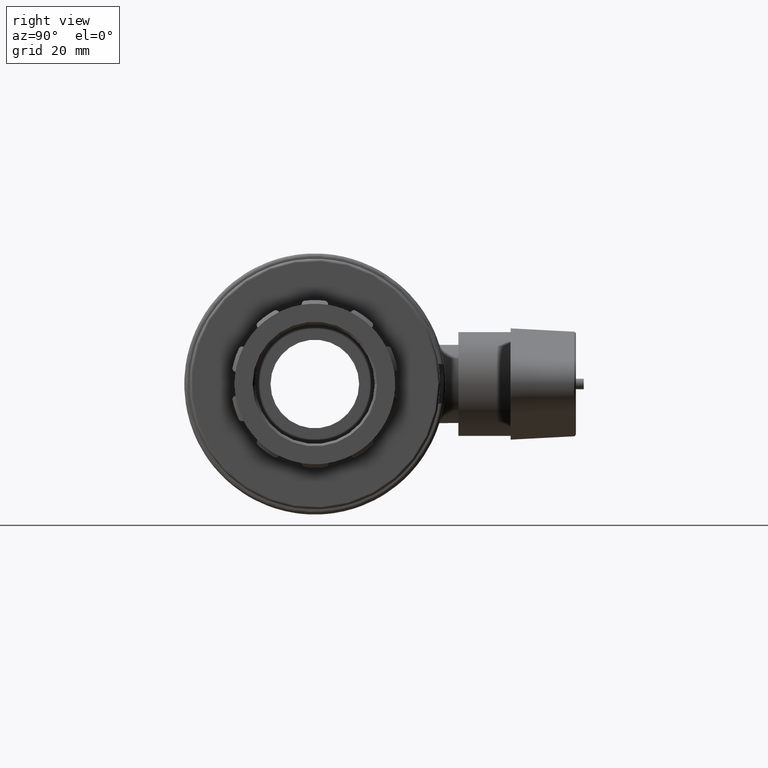
[diagram: clean part render]
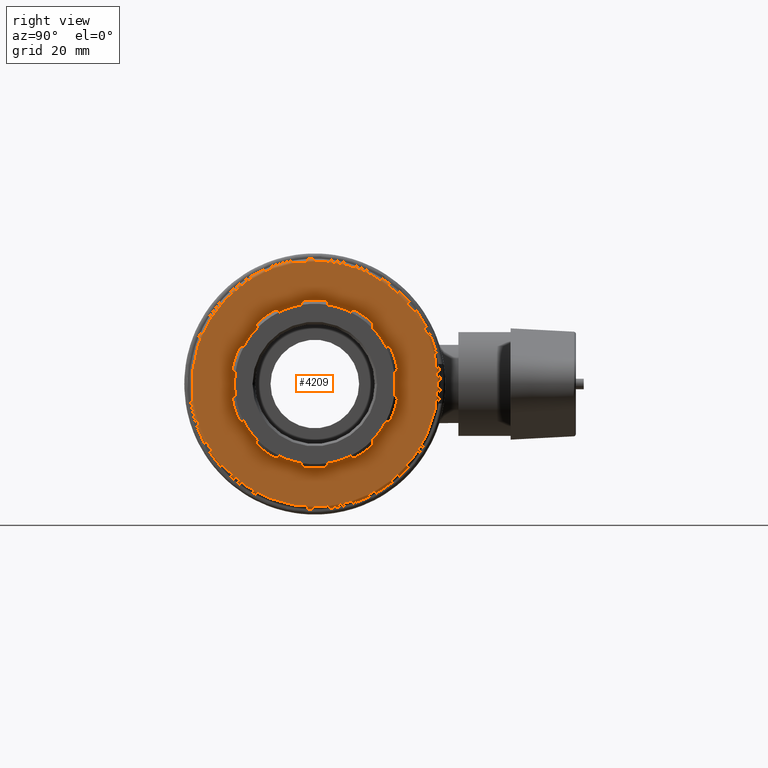
[diagram: same view with one face highlighted and labeled with its STEP entity id]
A machine part, right view. The second image highlights one B-rep face of the part: STEP entity #4209.
In plain terms, the highlighted planar face has unit normal (1, 0, 0).
Its self-contained STEP definition (entity closure, byte-faithful):
#52=FACE_BOUND('',#856,.T.);
#201=PLANE('',#4698);
#589=FACE_OUTER_BOUND('',#855,.T.);
#855=EDGE_LOOP('',(#3785));
#856=EDGE_LOOP('',(#3786,#3787,#3788,#3789,#3790,#3791,#3792,#3793,#3794,
#3795,#3796,#3797,#3798,#3799,#3800,#3801,#3802,#3803,#3804,#3805,#3806,
#3807,#3808,#3809,#3810,#3811,#3812,#3813,#3814,#3815,#3816,#3817,#3818,
#3819,#3820,#3821,#3822,#3823,#3824,#3825));
#1422=CIRCLE('',#4371,0.908729999999999);
#1425=CIRCLE('',#4376,0.908730000000002);
#1428=CIRCLE('',#4381,0.908730000000002);
#1429=CIRCLE('',#4383,0.908729999999998);
#1432=CIRCLE('',#4388,0.908729999999998);
#1433=CIRCLE('',#4390,0.908730000000002);
#1436=CIRCLE('',#4395,0.908729999999999);
#1437=CIRCLE('',#4397,0.908729999999999);
#1440=CIRCLE('',#4402,0.90873);
#1441=CIRCLE('',#4404,0.90873);
#1444=CIRCLE('',#4409,0.908729999999999);
#1445=CIRCLE('',#4411,0.908729999999998);
#1448=CIRCLE('',#4416,0.908729999999997);
#1449=CIRCLE('',#4418,0.908729999999998);
#1452=CIRCLE('',#4423,0.908729999999998);
#1453=CIRCLE('',#4425,0.908730000000002);
#1456=CIRCLE('',#4430,0.908729999999999);
#1457=CIRCLE('',#4432,0.908729999999999);
#1458=CIRCLE('',#4434,21.2037);
#1461=CIRCLE('',#4438,20.29497);
#1463=CIRCLE('',#4441,20.29497);
#1465=CIRCLE('',#4444,20.29497);
#1467=CIRCLE('',#4447,20.29497);
#1469=CIRCLE('',#4450,20.29497);
#1471=CIRCLE('',#4453,20.29497);
#1473=CIRCLE('',#4456,20.29497);
#1475=CIRCLE('',#4459,20.29497);
#1477=CIRCLE('',#4462,20.29497);
#1479=CIRCLE('',#4466,21.2037);
#1480=CIRCLE('',#4468,21.2037);
#1481=CIRCLE('',#4470,21.2037);
#1482=CIRCLE('',#4472,21.2037);
#1483=CIRCLE('',#4474,21.2037);
#1484=CIRCLE('',#4476,21.2037);
#1485=CIRCLE('',#4478,21.2037);
#1486=CIRCLE('',#4480,21.2037);
#1487=CIRCLE('',#4482,21.2037);
#1515=CIRCLE('',#4536,0.90873);
#1516=CIRCLE('',#4538,0.90873);
#1518=CIRCLE('',#4541,20.29497);
#1595=CIRCLE('',#4696,31.07418);
#1746=VERTEX_POINT('',#7092);
#1747=VERTEX_POINT('',#7094);
#1750=VERTEX_POINT('',#7115);
#1751=VERTEX_POINT('',#7116);
#1756=VERTEX_POINT('',#7152);
#1757=VERTEX_POINT('',#7154);
#1758=VERTEX_POINT('',#7158);
#1759=VERTEX_POINT('',#7159);
#1764=VERTEX_POINT('',#7195);
#1765=VERTEX_POINT('',#7197);
#1766=VERTEX_POINT('',#7201);
#1767=VERTEX_POINT('',#7202);
#1772=VERTEX_POINT('',#7238);
#1773=VERTEX_POINT('',#7240);
#1774=VERTEX_POINT('',#7244);
#1775=VERTEX_POINT('',#7245);
#1780=VERTEX_POINT('',#7281);
#1781=VERTEX_POINT('',#7283);
#1782=VERTEX_POINT('',#7287);
#1783=VERTEX_POINT('',#7288);
#1788=VERTEX_POINT('',#7324);
#1789=VERTEX_POINT('',#7326);
#1790=VERTEX_POINT('',#7330);
#1791=VERTEX_POINT('',#7331);
#1796=VERTEX_POINT('',#7367);
#1797=VERTEX_POINT('',#7369);
#1798=VERTEX_POINT('',#7373);
#1799=VERTEX_POINT('',#7374);
#1804=VERTEX_POINT('',#7410);
#1805=VERTEX_POINT('',#7412);
#1806=VERTEX_POINT('',#7416);
#1807=VERTEX_POINT('',#7417);
#1812=VERTEX_POINT('',#7453);
#1813=VERTEX_POINT('',#7455);
#1814=VERTEX_POINT('',#7459);
#1815=VERTEX_POINT('',#7460);
#1818=VERTEX_POINT('',#7479);
#1821=VERTEX_POINT('',#7541);
#1857=VERTEX_POINT('',#7662);
#1858=VERTEX_POINT('',#7666);
#2008=VERTEX_POINT('',#8585);
#2231=EDGE_CURVE('',#1747,#1746,#1422,.T.);
#2236=EDGE_CURVE('',#1750,#1751,#1425,.F.);
#2244=EDGE_CURVE('',#1757,#1756,#1428,.T.);
#2246=EDGE_CURVE('',#1758,#1759,#1429,.F.);
#2254=EDGE_CURVE('',#1765,#1764,#1432,.T.);
#2256=EDGE_CURVE('',#1766,#1767,#1433,.F.);
#2264=EDGE_CURVE('',#1773,#1772,#1436,.T.);
#2266=EDGE_CURVE('',#1774,#1775,#1437,.F.);
#2274=EDGE_CURVE('',#1781,#1780,#1440,.T.);
#2276=EDGE_CURVE('',#1782,#1783,#1441,.F.);
#2284=EDGE_CURVE('',#1789,#1788,#1444,.T.);
#2286=EDGE_CURVE('',#1790,#1791,#1445,.F.);
#2294=EDGE_CURVE('',#1797,#1796,#1448,.T.);
#2296=EDGE_CURVE('',#1798,#1799,#1449,.F.);
#2304=EDGE_CURVE('',#1805,#1804,#1452,.T.);
#2306=EDGE_CURVE('',#1806,#1807,#1453,.F.);
#2314=EDGE_CURVE('',#1813,#1812,#1456,.T.);
#2316=EDGE_CURVE('',#1814,#1815,#1457,.F.);
#2320=EDGE_CURVE('',#1818,#1815,#1458,.T.);
#2324=EDGE_CURVE('',#1747,#1750,#1461,.T.);
#2326=EDGE_CURVE('',#1757,#1758,#1463,.T.);
#2328=EDGE_CURVE('',#1765,#1766,#1465,.T.);
#2330=EDGE_CURVE('',#1773,#1774,#1467,.T.);
#2332=EDGE_CURVE('',#1781,#1782,#1469,.T.);
#2334=EDGE_CURVE('',#1789,#1790,#1471,.T.);
#2336=EDGE_CURVE('',#1797,#1798,#1473,.T.);
#2338=EDGE_CURVE('',#1805,#1806,#1475,.T.);
#2340=EDGE_CURVE('',#1813,#1814,#1477,.T.);
#2343=EDGE_CURVE('',#1812,#1807,#1479,.T.);
#2344=EDGE_CURVE('',#1804,#1799,#1480,.T.);
#2345=EDGE_CURVE('',#1796,#1791,#1481,.T.);
#2346=EDGE_CURVE('',#1788,#1783,#1482,.T.);
#2347=EDGE_CURVE('',#1780,#1775,#1483,.T.);
#2348=EDGE_CURVE('',#1772,#1767,#1484,.T.);
#2349=EDGE_CURVE('',#1764,#1759,#1485,.T.);
#2351=EDGE_CURVE('',#1746,#1821,#1486,.T.);
#2352=EDGE_CURVE('',#1756,#1751,#1487,.T.);
#2408=EDGE_CURVE('',#1857,#1818,#1515,.T.);
#2410=EDGE_CURVE('',#1858,#1821,#1516,.F.);
#2413=EDGE_CURVE('',#1857,#1858,#1518,.T.);
#2635=EDGE_CURVE('',#2008,#2008,#1595,.T.);
#3785=ORIENTED_EDGE('',*,*,#2635,.F.);
#3786=ORIENTED_EDGE('',*,*,#2320,.T.);
#3787=ORIENTED_EDGE('',*,*,#2316,.F.);
#3788=ORIENTED_EDGE('',*,*,#2340,.F.);
#3789=ORIENTED_EDGE('',*,*,#2314,.T.);
#3790=ORIENTED_EDGE('',*,*,#2343,.T.);
#3791=ORIENTED_EDGE('',*,*,#2306,.F.);
#3792=ORIENTED_EDGE('',*,*,#2338,.F.);
#3793=ORIENTED_EDGE('',*,*,#2304,.T.);
#3794=ORIENTED_EDGE('',*,*,#2344,.T.);
#3795=ORIENTED_EDGE('',*,*,#2296,.F.);
#3796=ORIENTED_EDGE('',*,*,#2336,.F.);
#3797=ORIENTED_EDGE('',*,*,#2294,.T.);
#3798=ORIENTED_EDGE('',*,*,#2345,.T.);
#3799=ORIENTED_EDGE('',*,*,#2286,.F.);
#3800=ORIENTED_EDGE('',*,*,#2334,.F.);
#3801=ORIENTED_EDGE('',*,*,#2284,.T.);
#3802=ORIENTED_EDGE('',*,*,#2346,.T.);
#3803=ORIENTED_EDGE('',*,*,#2276,.F.);
#3804=ORIENTED_EDGE('',*,*,#2332,.F.);
#3805=ORIENTED_EDGE('',*,*,#2274,.T.);
#3806=ORIENTED_EDGE('',*,*,#2347,.T.);
#3807=ORIENTED_EDGE('',*,*,#2266,.F.);
#3808=ORIENTED_EDGE('',*,*,#2330,.F.);
#3809=ORIENTED_EDGE('',*,*,#2264,.T.);
#3810=ORIENTED_EDGE('',*,*,#2348,.T.);
#3811=ORIENTED_EDGE('',*,*,#2256,.F.);
#3812=ORIENTED_EDGE('',*,*,#2328,.F.);
#3813=ORIENTED_EDGE('',*,*,#2254,.T.);
#3814=ORIENTED_EDGE('',*,*,#2349,.T.);
#3815=ORIENTED_EDGE('',*,*,#2246,.F.);
#3816=ORIENTED_EDGE('',*,*,#2326,.F.);
#3817=ORIENTED_EDGE('',*,*,#2244,.T.);
#3818=ORIENTED_EDGE('',*,*,#2352,.T.);
#3819=ORIENTED_EDGE('',*,*,#2236,.F.);
#3820=ORIENTED_EDGE('',*,*,#2324,.F.);
#3821=ORIENTED_EDGE('',*,*,#2231,.T.);
#3822=ORIENTED_EDGE('',*,*,#2351,.T.);
#3823=ORIENTED_EDGE('',*,*,#2410,.F.);
#3824=ORIENTED_EDGE('',*,*,#2413,.F.);
#3825=ORIENTED_EDGE('',*,*,#2408,.T.);
#4209=ADVANCED_FACE('',(#589,#52),#201,.T.);
#4371=AXIS2_PLACEMENT_3D('',#7095,#5081,#5082);
#4376=AXIS2_PLACEMENT_3D('',#7117,#5092,#5093);
#4381=AXIS2_PLACEMENT_3D('',#7155,#5105,#5106);
#4383=AXIS2_PLACEMENT_3D('',#7160,#5110,#5111);
#4388=AXIS2_PLACEMENT_3D('',#7198,#5123,#5124);
#4390=AXIS2_PLACEMENT_3D('',#7203,#5128,#5129);
#4395=AXIS2_PLACEMENT_3D('',#7241,#5141,#5142);
#4397=AXIS2_PLACEMENT_3D('',#7246,#5146,#5147);
#4402=AXIS2_PLACEMENT_3D('',#7284,#5159,#5160);
#4404=AXIS2_PLACEMENT_3D('',#7289,#5164,#5165);
#4409=AXIS2_PLACEMENT_3D('',#7327,#5177,#5178);
#4411=AXIS2_PLACEMENT_3D('',#7332,#5182,#5183);
#4416=AXIS2_PLACEMENT_3D('',#7370,#5195,#5196);
#4418=AXIS2_PLACEMENT_3D('',#7375,#5200,#5201);
#4423=AXIS2_PLACEMENT_3D('',#7413,#5213,#5214);
#4425=AXIS2_PLACEMENT_3D('',#7418,#5218,#5219);
#4430=AXIS2_PLACEMENT_3D('',#7456,#5231,#5232);
#4432=AXIS2_PLACEMENT_3D('',#7461,#5236,#5237);
#4434=AXIS2_PLACEMENT_3D('',#7480,#5242,#5243);
#4438=AXIS2_PLACEMENT_3D('',#7486,#5251,#5252);
#4441=AXIS2_PLACEMENT_3D('',#7489,#5257,#5258);
#4444=AXIS2_PLACEMENT_3D('',#7492,#5263,#5264);
#4447=AXIS2_PLACEMENT_3D('',#7495,#5269,#5270);
#4450=AXIS2_PLACEMENT_3D('',#7498,#5275,#5276);
#4453=AXIS2_PLACEMENT_3D('',#7501,#5281,#5282);
#4456=AXIS2_PLACEMENT_3D('',#7504,#5287,#5288);
#4459=AXIS2_PLACEMENT_3D('',#7507,#5293,#5294);
#4462=AXIS2_PLACEMENT_3D('',#7510,#5299,#5300);
#4466=AXIS2_PLACEMENT_3D('',#7527,#5307,#5308);
#4468=AXIS2_PLACEMENT_3D('',#7529,#5311,#5312);
#4470=AXIS2_PLACEMENT_3D('',#7531,#5315,#5316);
#4472=AXIS2_PLACEMENT_3D('',#7533,#5319,#5320);
#4474=AXIS2_PLACEMENT_3D('',#7535,#5323,#5324);
#4476=AXIS2_PLACEMENT_3D('',#7537,#5327,#5328);
#4478=AXIS2_PLACEMENT_3D('',#7539,#5331,#5332);
#4480=AXIS2_PLACEMENT_3D('',#7543,#5336,#5337);
#4482=AXIS2_PLACEMENT_3D('',#7545,#5340,#5341);
#4536=AXIS2_PLACEMENT_3D('',#7663,#5476,#5477);
#4538=AXIS2_PLACEMENT_3D('',#7667,#5481,#5482);
#4541=AXIS2_PLACEMENT_3D('',#7671,#5488,#5489);
#4696=AXIS2_PLACEMENT_3D('',#8586,#5894,#5895);
#4698=AXIS2_PLACEMENT_3D('',#8589,#5898,#5899);
#5081=DIRECTION('center_axis',(-1.,0.,0.));
#5082=DIRECTION('ref_axis',(0.,0.907406534943978,0.420253947442453));
#5092=DIRECTION('center_axis',(-1.,0.,0.));
#5093=DIRECTION('ref_axis',(0.,0.68008929531848,0.733129286274402));
#5105=DIRECTION('center_axis',(-1.,0.,0.));
#5106=DIRECTION('ref_axis',(0.,0.487088235052193,0.873352764507985));
#5110=DIRECTION('center_axis',(-1.,0.,0.));
#5111=DIRECTION('ref_axis',(0.,0.119281215109332,0.99286050970015));
#5123=DIRECTION('center_axis',(-1.,0.,0.));
#5124=DIRECTION('ref_axis',(0.,-0.119281215109332,0.99286050970015));
#5128=DIRECTION('center_axis',(-1.,0.,0.));
#5129=DIRECTION('ref_axis',(0.,-0.487088235052192,0.873352764507985));
#5141=DIRECTION('center_axis',(-1.,0.,0.));
#5142=DIRECTION('ref_axis',(0.,-0.68008929531848,0.733129286274402));
#5146=DIRECTION('center_axis',(-1.,0.,0.));
#5147=DIRECTION('ref_axis',(0.,-0.907406534943978,0.420253947442453));
#5159=DIRECTION('center_axis',(-1.,0.,0.));
#5160=DIRECTION('ref_axis',(0.,-0.981126380100933,0.193367593639784));
#5164=DIRECTION('center_axis',(-1.,0.,0.));
#5165=DIRECTION('ref_axis',(0.,-0.981126380100932,-0.193367593639784));
#5177=DIRECTION('center_axis',(-1.,0.,0.));
#5178=DIRECTION('ref_axis',(0.,-0.907406534943978,-0.420253947442453));
#5182=DIRECTION('center_axis',(-1.,0.,0.));
#5183=DIRECTION('ref_axis',(0.,-0.680089295318478,-0.733129286274403));
#5195=DIRECTION('center_axis',(-1.,0.,0.));
#5196=DIRECTION('ref_axis',(0.,-0.487088235052193,-0.873352764507985));
#5200=DIRECTION('center_axis',(-1.,0.,0.));
#5201=DIRECTION('ref_axis',(0.,-0.119281215109332,-0.99286050970015));
#5213=DIRECTION('center_axis',(-1.,0.,0.));
#5214=DIRECTION('ref_axis',(0.,0.119281215109332,-0.99286050970015));
#5218=DIRECTION('center_axis',(-1.,0.,0.));
#5219=DIRECTION('ref_axis',(0.,0.487088235052192,-0.873352764507985));
#5231=DIRECTION('center_axis',(-1.,0.,0.));
#5232=DIRECTION('ref_axis',(0.,0.68008929531848,-0.733129286274402));
#5236=DIRECTION('center_axis',(-1.,0.,0.));
#5237=DIRECTION('ref_axis',(0.,0.907406534943978,-0.420253947442453));
#5242=DIRECTION('center_axis',(-1.,0.,0.));
#5243=DIRECTION('ref_axis',(0.,0.,1.));
#5251=DIRECTION('center_axis',(1.,0.,0.));
#5252=DIRECTION('ref_axis',(0.,-0.587785252292473,0.809016994374947));
#5257=DIRECTION('center_axis',(1.,0.,0.));
#5258=DIRECTION('ref_axis',(0.,-0.951056516295154,0.309016994374947));
#5263=DIRECTION('center_axis',(1.,0.,0.));
#5264=DIRECTION('ref_axis',(0.,-0.951056516295154,-0.309016994374948));
#5269=DIRECTION('center_axis',(1.,0.,0.));
#5270=DIRECTION('ref_axis',(0.,-0.587785252292473,-0.809016994374948));
#5275=DIRECTION('center_axis',(1.,0.,0.));
#5276=DIRECTION('ref_axis',(0.,1.64113032632E-16,-1.));
#5281=DIRECTION('center_axis',(1.,0.,0.));
#5282=DIRECTION('ref_axis',(0.,0.587785252292473,-0.809016994374947));
#5287=DIRECTION('center_axis',(1.,0.,0.));
#5288=DIRECTION('ref_axis',(0.,0.951056516295154,-0.309016994374947));
#5293=DIRECTION('center_axis',(1.,0.,0.));
#5294=DIRECTION('ref_axis',(0.,0.951056516295154,0.309016994374947));
#5299=DIRECTION('center_axis',(1.,0.,0.));
#5300=DIRECTION('ref_axis',(0.,0.587785252292473,0.809016994374948));
#5307=DIRECTION('center_axis',(-1.,0.,0.));
#5308=DIRECTION('ref_axis',(0.,0.,1.));
#5311=DIRECTION('center_axis',(-1.,0.,0.));
#5312=DIRECTION('ref_axis',(0.,0.,1.));
#5315=DIRECTION('center_axis',(-1.,0.,0.));
#5316=DIRECTION('ref_axis',(0.,0.,1.));
#5319=DIRECTION('center_axis',(-1.,0.,0.));
#5320=DIRECTION('ref_axis',(0.,0.,1.));
#5323=DIRECTION('center_axis',(-1.,0.,0.));
#5324=DIRECTION('ref_axis',(0.,0.,1.));
#5327=DIRECTION('center_axis',(-1.,0.,0.));
#5328=DIRECTION('ref_axis',(0.,0.,1.));
#5331=DIRECTION('center_axis',(-1.,0.,0.));
#5332=DIRECTION('ref_axis',(0.,0.,1.));
#5336=DIRECTION('center_axis',(-1.,0.,0.));
#5337=DIRECTION('ref_axis',(0.,0.,1.));
#5340=DIRECTION('center_axis',(-1.,0.,0.));
#5341=DIRECTION('ref_axis',(0.,0.,1.));
#5476=DIRECTION('center_axis',(-1.,0.,0.));
#5477=DIRECTION('ref_axis',(0.,0.981126380100933,-0.193367593639784));
#5481=DIRECTION('center_axis',(-1.,0.,0.));
#5482=DIRECTION('ref_axis',(0.,0.981126380100933,0.193367593639784));
#5488=DIRECTION('center_axis',(1.,0.,0.));
#5489=DIRECTION('ref_axis',(0.,0.,1.));
#5894=DIRECTION('center_axis',(-1.,0.,0.));
#5895=DIRECTION('ref_axis',(0.,-1.,-1.83697019872103E-16));
#5898=DIRECTION('center_axis',(1.,0.,0.));
#5899=DIRECTION('ref_axis',(0.,0.,-1.));
#7092=CARTESIAN_POINT('',(32.3666666666667,19.2403759449916,8.91093862538554));
#7094=CARTESIAN_POINT('',(32.3666666666667,18.0155258402855,9.34487217670233));
#7095=CARTESIAN_POINT('Origin',(32.3666666666667,18.415788404492,8.52904125572616));
#7115=CARTESIAN_POINT('',(32.3666666666667,14.4546052248472,14.2460589320246));
#7116=CARTESIAN_POINT('',(32.3666666666667,14.4204093911444,15.5450534473765));
#7117=CARTESIAN_POINT('Origin',(32.3666666666667,13.8023918458097,14.8788368710604));
#7152=CARTESIAN_POINT('',(32.3666666666667,10.3280728095762,18.518310012798));
#7154=CARTESIAN_POINT('',(32.3666666666667,9.08208851736809,18.1494208024276));
#7155=CARTESIAN_POINT('Origin',(32.3666666666667,9.88544111773719,17.7246681551066));
#7158=CARTESIAN_POINT('',(32.3666666666667,3.32039793034879,20.0215075577499));
#7159=CARTESIAN_POINT('',(32.3666666666667,2.52920310081374,21.0523163895291));
#7160=CARTESIAN_POINT('Origin',(32.3666666666667,2.42080868220744,20.1500742585493));
#7195=CARTESIAN_POINT('',(32.3666666666667,-2.52920310081375,21.0523163895291));
#7197=CARTESIAN_POINT('',(32.3666666666667,-3.3203979303488,20.0215075577499));
#7198=CARTESIAN_POINT('Origin',(32.3666666666667,-2.42080868220745,20.1500742585493));
#7201=CARTESIAN_POINT('',(32.3666666666667,-9.08208851736809,18.1494208024276));
#7202=CARTESIAN_POINT('',(32.3666666666667,-10.3280728095762,18.518310012798));
#7203=CARTESIAN_POINT('Origin',(32.3666666666667,-9.8854411177372,17.7246681551066));
#7238=CARTESIAN_POINT('',(32.3666666666667,-14.4204093911444,15.5450534473765));
#7240=CARTESIAN_POINT('',(32.3666666666667,-14.4546052248472,14.2460589320246));
#7241=CARTESIAN_POINT('Origin',(32.3666666666667,-13.8023918458097,14.8788368710604));
#7244=CARTESIAN_POINT('',(32.3666666666667,-18.0155258402855,9.34487217670231));
#7245=CARTESIAN_POINT('',(32.3666666666667,-19.2403759449916,8.91093862538553));
#7246=CARTESIAN_POINT('Origin',(32.3666666666667,-18.415788404492,8.52904125572615));
#7281=CARTESIAN_POINT('',(32.3666666666667,-20.8035094257461,4.10010844525989));
#7283=CARTESIAN_POINT('',(32.3666666666667,-20.0676446174159,3.02909999999999));
#7284=CARTESIAN_POINT('Origin',(32.3666666666667,-19.911930450357,3.92438951189161));
#7287=CARTESIAN_POINT('',(32.3666666666667,-20.0676446174159,-3.0291));
#7288=CARTESIAN_POINT('',(32.3666666666667,-20.8035094257461,-4.1001084452599));
#7289=CARTESIAN_POINT('Origin',(32.3666666666667,-19.911930450357,-3.92438951189162));
#7324=CARTESIAN_POINT('',(32.3666666666667,-19.2403759449916,-8.91093862538554));
#7326=CARTESIAN_POINT('',(32.3666666666667,-18.0155258402855,-9.34487217670232));
#7327=CARTESIAN_POINT('Origin',(32.3666666666667,-18.415788404492,-8.52904125572616));
#7330=CARTESIAN_POINT('',(32.3666666666667,-14.4546052248472,-14.2460589320246));
#7331=CARTESIAN_POINT('',(32.3666666666667,-14.4204093911444,-15.5450534473765));
#7332=CARTESIAN_POINT('Origin',(32.3666666666667,-13.8023918458097,-14.8788368710604));
#7367=CARTESIAN_POINT('',(32.3666666666667,-10.3280728095762,-18.518310012798));
#7369=CARTESIAN_POINT('',(32.3666666666667,-9.08208851736809,-18.1494208024276));
#7370=CARTESIAN_POINT('Origin',(32.3666666666667,-9.88544111773719,-17.7246681551066));
#7373=CARTESIAN_POINT('',(32.3666666666667,-3.32039793034879,-20.0215075577499));
#7374=CARTESIAN_POINT('',(32.3666666666667,-2.52920310081374,-21.0523163895291));
#7375=CARTESIAN_POINT('Origin',(32.3666666666667,-2.42080868220744,-20.1500742585493));
#7410=CARTESIAN_POINT('',(32.3666666666667,2.52920310081374,-21.0523163895291));
#7412=CARTESIAN_POINT('',(32.3666666666667,3.32039793034879,-20.0215075577499));
#7413=CARTESIAN_POINT('Origin',(32.3666666666667,2.42080868220744,-20.1500742585493));
#7416=CARTESIAN_POINT('',(32.3666666666667,9.08208851736809,-18.1494208024276));
#7417=CARTESIAN_POINT('',(32.3666666666667,10.3280728095762,-18.518310012798));
#7418=CARTESIAN_POINT('Origin',(32.3666666666667,9.8854411177372,-17.7246681551066));
#7453=CARTESIAN_POINT('',(32.3666666666667,14.4204093911444,-15.5450534473765));
#7455=CARTESIAN_POINT('',(32.3666666666667,14.4546052248472,-14.2460589320246));
#7456=CARTESIAN_POINT('Origin',(32.3666666666667,13.8023918458097,-14.8788368710604));
#7459=CARTESIAN_POINT('',(32.3666666666667,18.0155258402855,-9.34487217670232));
#7460=CARTESIAN_POINT('',(32.3666666666667,19.2403759449916,-8.91093862538553));
#7461=CARTESIAN_POINT('Origin',(32.3666666666667,18.415788404492,-8.52904125572615));
#7479=CARTESIAN_POINT('',(32.3666666666667,20.8035094257461,-4.10010844525989));
#7480=CARTESIAN_POINT('Origin',(32.3666666666667,0.,0.));
#7486=CARTESIAN_POINT('Origin',(32.3666666666667,0.,0.));
#7489=CARTESIAN_POINT('Origin',(32.3666666666667,0.,0.));
#7492=CARTESIAN_POINT('Origin',(32.3666666666667,0.,0.));
#7495=CARTESIAN_POINT('Origin',(32.3666666666667,0.,0.));
#7498=CARTESIAN_POINT('Origin',(32.3666666666667,0.,0.));
#7501=CARTESIAN_POINT('Origin',(32.3666666666667,0.,0.));
#7504=CARTESIAN_POINT('Origin',(32.3666666666667,0.,0.));
#7507=CARTESIAN_POINT('Origin',(32.3666666666667,0.,0.));
#7510=CARTESIAN_POINT('Origin',(32.3666666666667,0.,0.));
#7527=CARTESIAN_POINT('Origin',(32.3666666666667,0.,0.));
#7529=CARTESIAN_POINT('Origin',(32.3666666666667,0.,0.));
#7531=CARTESIAN_POINT('Origin',(32.3666666666667,0.,0.));
#7533=CARTESIAN_POINT('Origin',(32.3666666666667,0.,0.));
#7535=CARTESIAN_POINT('Origin',(32.3666666666667,0.,0.));
#7537=CARTESIAN_POINT('Origin',(32.3666666666667,0.,0.));
#7539=CARTESIAN_POINT('Origin',(32.3666666666667,0.,0.));
#7541=CARTESIAN_POINT('',(32.3666666666667,20.8035094257461,4.1001084452599));
#7543=CARTESIAN_POINT('Origin',(32.3666666666667,0.,0.));
#7545=CARTESIAN_POINT('Origin',(32.3666666666667,0.,0.));
#7662=CARTESIAN_POINT('',(32.3666666666667,20.0676446174159,-3.0291));
#7663=CARTESIAN_POINT('Origin',(32.3666666666667,19.911930450357,-3.92438951189161));
#7666=CARTESIAN_POINT('',(32.3666666666667,20.0676446174159,3.0291));
#7667=CARTESIAN_POINT('Origin',(32.3666666666667,19.911930450357,3.92438951189162));
#7671=CARTESIAN_POINT('Origin',(32.3666666666667,0.,0.));
#8585=CARTESIAN_POINT('',(32.3666666666667,31.07418,1.90274475365643E-15));
#8586=CARTESIAN_POINT('Origin',(32.3666666666667,0.,0.));
#8589=CARTESIAN_POINT('Origin',(32.3666666666667,31.68,0.));